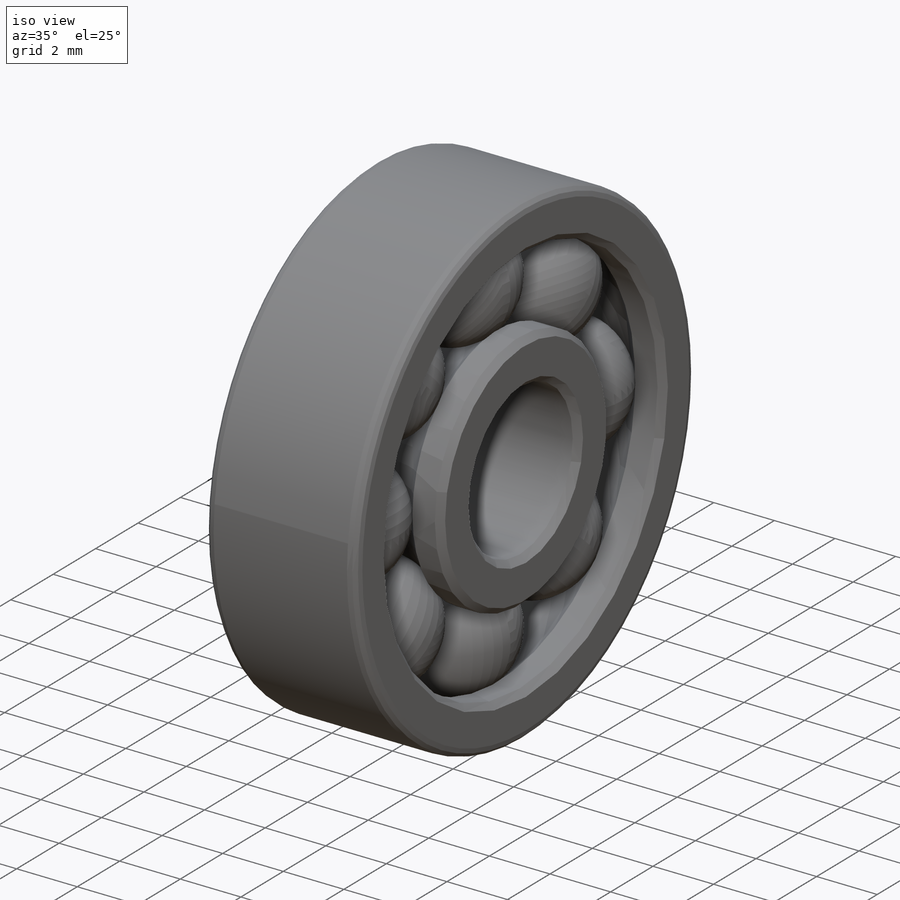
[diagram: iso view]
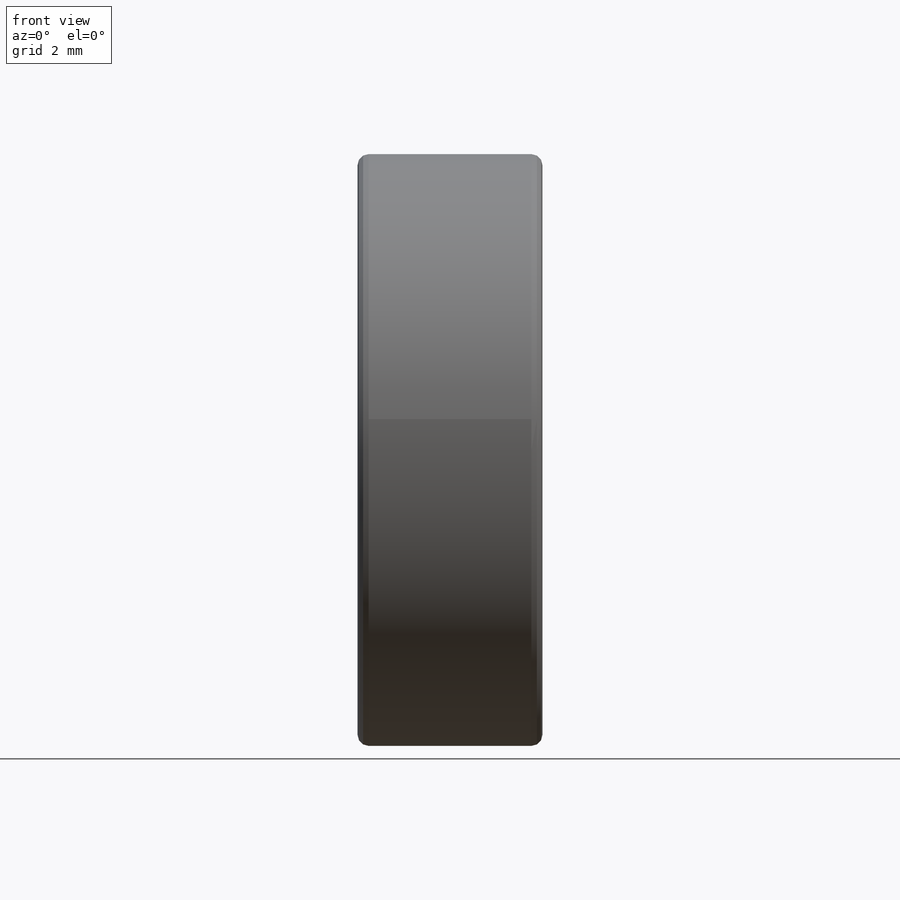
[diagram: front view]
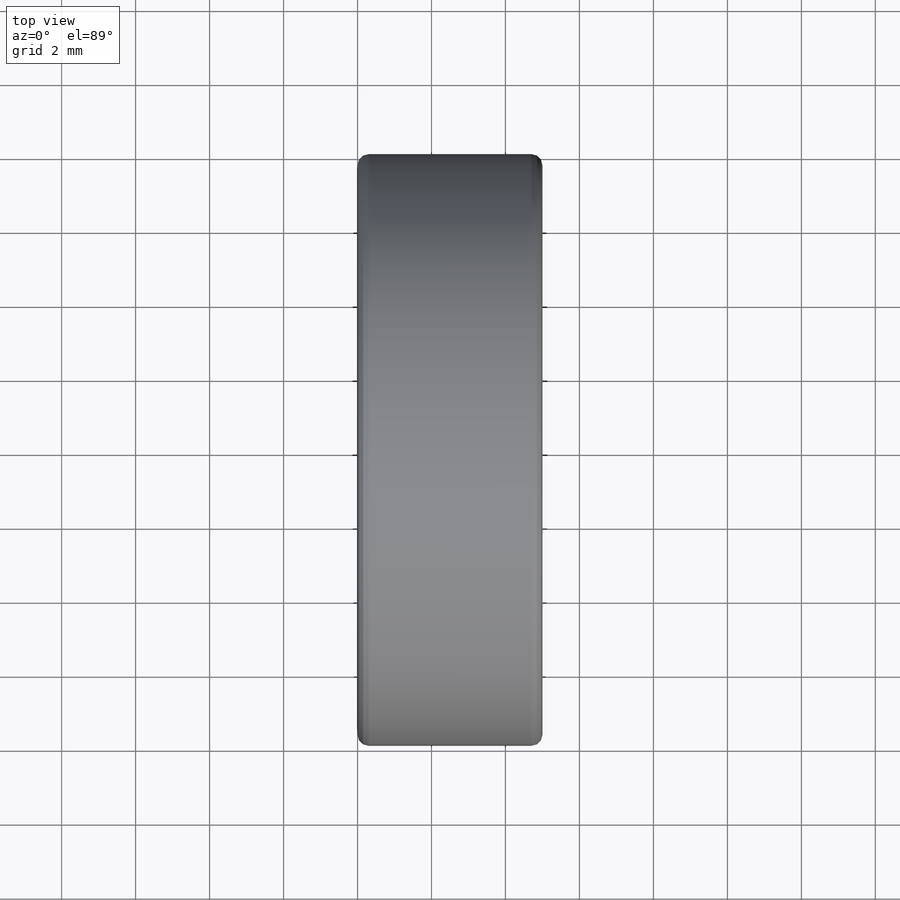
[diagram: top view]
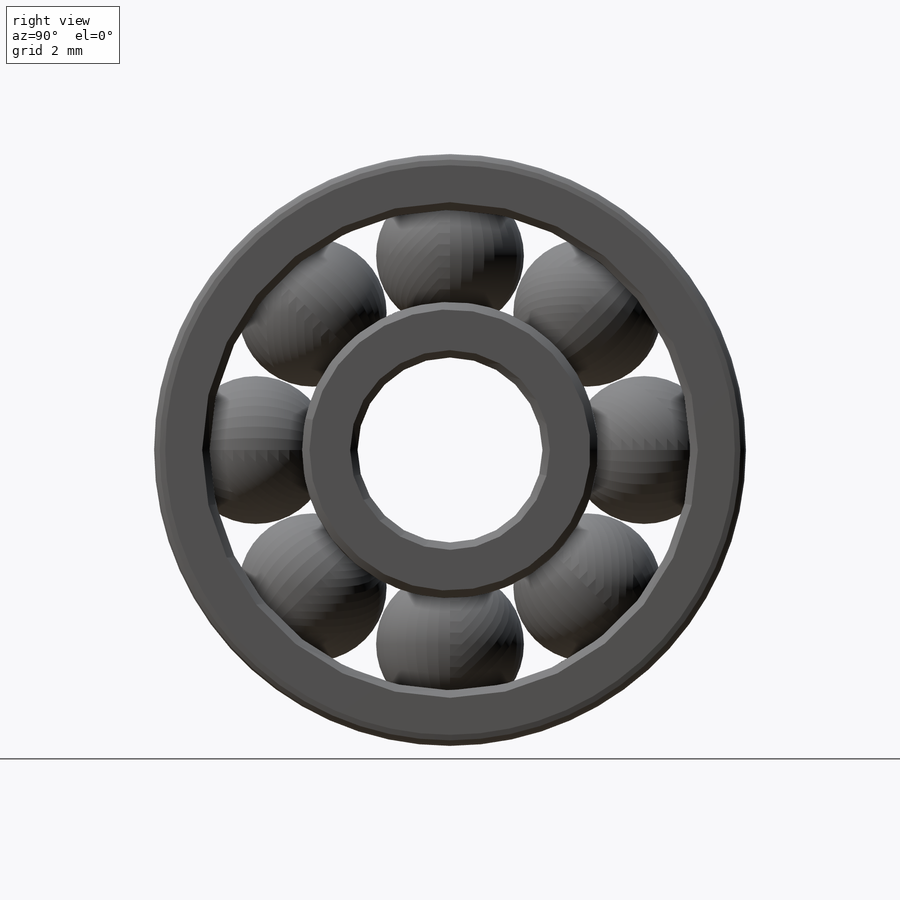
[diagram: right view]
SOLIDWORKS PART (.sldprt)
format: sldprt  version: not decoded by parser v0  size: 570,368 bytes
history: native  units: mm
features: plane x3, sketch x2, revolve x2, chamfer x2, material x1, pattern_circular x1, fillet x1 (+10 scaffold rows collapsed)
feature tree (22):
  scaffold x10  (default folders/planes/origin — collapsed)
  material  "1023 Листовая углеродистая сталь (SS)"
  plane  "Спереди"
  plane  "Сверху"
  plane  "Справа"
  sketch  "Эскиз1"  dims[c1.D7=~1.802395mm c1.D8=~2.278767mm c1.D9=2.0mm c1.D1=~24.536118mm c1.D2=~25.062967mm c2.D1=~14.300191mm c2.D2=~25.062967mm c3.D1=2.5mm c3.D2=~6.443662mm c3.D3=11.0mm c4.D2=5.0mm c4.D3=1.5mm c4.D4=5.0mm c4.D5=1.5mm c4.D6=8.0mm c4.D7=2.5mm c4.D8=6.0mm c5.D7=1.25mm c5.D8=0.0mm c5.D10=2.5mm]
  revolve  "Повернуть1"  Angle=360deg
  sketch  "Эскиз2"  dims[D1=~0.09052mm]
  revolve  "Повернуть2"  Angle=360deg
  pattern_circular  "Круговой массив5"  Count=8 Angle=360deg
  fillet  "Скругление1"  Radius=0.3mm
  chamfer  "Фаска1"  Distance=0.2mm Angle=45deg
  chamfer  "Фаска2"  Distance=0.2mm Angle=45deg
decode coverage: 8 of 8 modeling features carry decoded parameters
note: ~ marks probable driven/reference dimensions
note: suppression state not decoded; provenance and decode notes live in map.json
